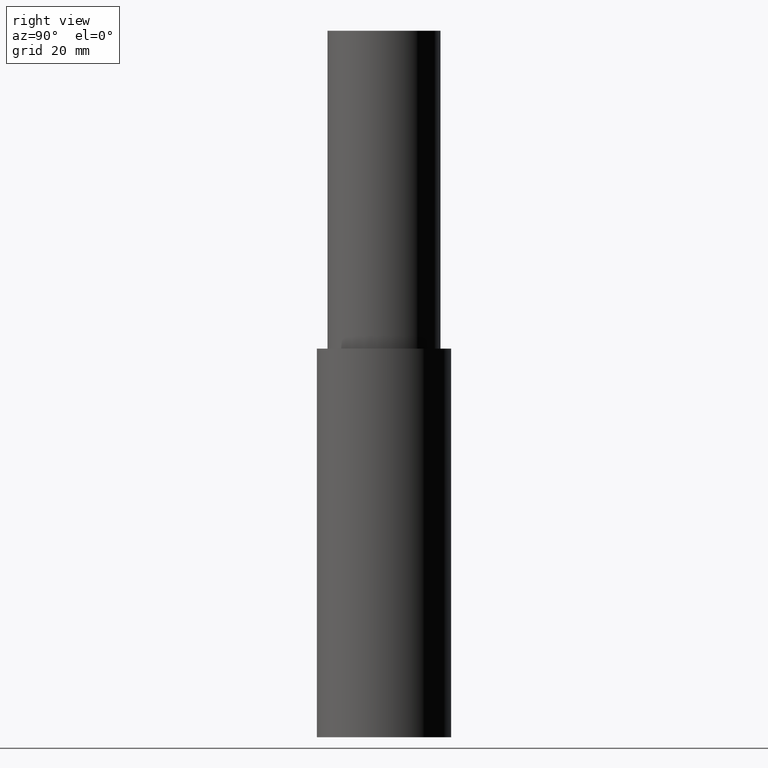
[diagram: clean part render]
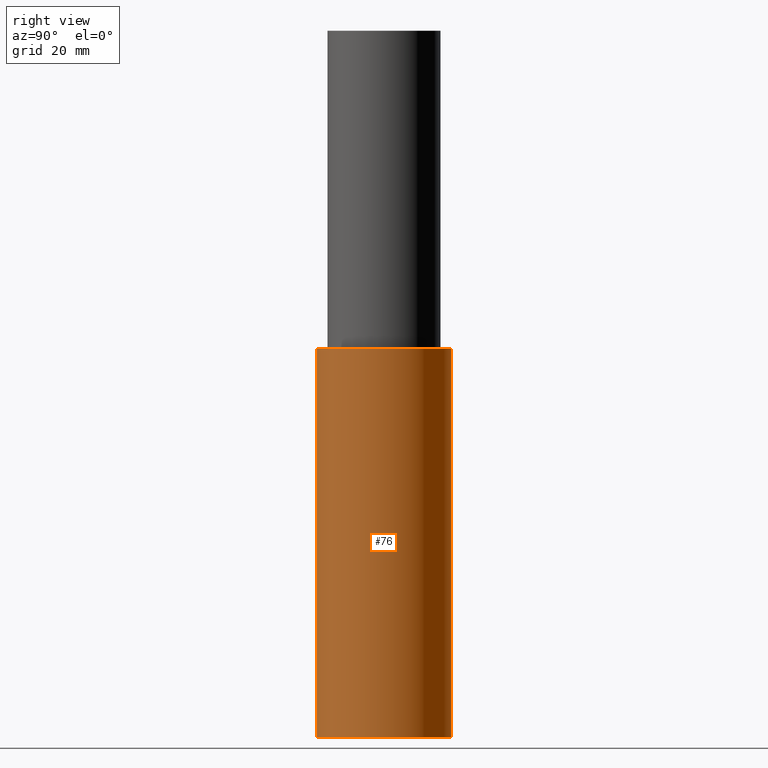
[diagram: same view with one face highlighted and labeled with its STEP entity id]
A machine part, right view. The second image highlights one B-rep face of the part: STEP entity #76.
In plain terms, the highlighted cylindrical surface (bore or boss wall) has radius 19 mm, axis along (0, -0, -1).
Its self-contained STEP definition (entity closure, byte-faithful):
#76=ADVANCED_FACE('',(#83,#84),#85,.T.);
#83=FACE_BOUND('',#96,.T.);
#84=FACE_BOUND('',#97,.T.);
#85=CYLINDRICAL_SURFACE('',#98,19.0000000000021);
#96=EDGE_LOOP('',(#111));
#97=EDGE_LOOP('',(#112));
#98=AXIS2_PLACEMENT_3D('',#113,#114,#115);
#111=ORIENTED_EDGE('',*,*,#131,.F.);
#112=ORIENTED_EDGE('',*,*,#130,.T.);
#113=CARTESIAN_POINT('',(-3.36777869765518E-015,9.97115872016353E-016,54.9999999999992));
#114=DIRECTION('',(6.12323399573677E-017,-1.81293794912066E-017,-1.0));
#115=DIRECTION('',(-3.71704840254733E-033,1.0,-1.81293794912066E-017));
#130=EDGE_CURVE('',#134,#134,#135,.T.);
#131=EDGE_CURVE('',#136,#136,#137,.T.);
#134=VERTEX_POINT('',#142);
#135=CIRCLE('',#143,19.0000000000003);
#136=VERTEX_POINT('',#144);
#137=CIRCLE('',#145,19.0000000000039);
#142=CARTESIAN_POINT('',(0.0,19.0000000000003,0.0));
#143=AXIS2_PLACEMENT_3D('',#150,#151,#152);
#144=CARTESIAN_POINT('',(-6.73555739531035E-015,19.0000000000039,109.999999999998));
#145=AXIS2_PLACEMENT_3D('',#153,#154,#155);
#150=CARTESIAN_POINT('',(0.0,0.0,0.0));
#151=DIRECTION('',(-6.12323399573677E-017,1.81293794912066E-017,1.0));
#152=DIRECTION('',(-3.71704840254733E-033,1.0,-1.81293794912066E-017));
#153=CARTESIAN_POINT('',(-6.73555739531035E-015,1.99423174403266E-015,109.999999999998));
#154=DIRECTION('',(-6.12323399573676E-017,1.81293794912066E-017,1.0));
#155=DIRECTION('',(-3.71704840254733E-033,1.0,-1.81293794912066E-017));